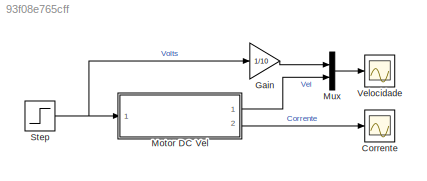
MODEL slx_93f08e765cff
KIND model
CONFIG AbsTol = auto
CONFIG EnableMultiTasking = off
CONFIG FixedStep = auto
CONFIG MaxStep = auto
CONFIG MinStep = auto
CONFIG RelTol = 1e-3
CONFIG SampleTimeConstraint = Unconstrained
CONFIG Solver = VariableStepAuto
CONFIG SolverName = VariableStepAuto
CONFIG StartTime = 0.0
CONFIG StopTime = 5
BLOCK [Scope] Corrente
  Floating = off
  NumInputPorts = 1
  Ports = [1]
  ScopeSpecificationString = Simulink.scopes.TimeScopeBlockCfg('CurrentConfiguration', extmgr.ConfigurationSet(extmgr.Configuration('Core','General UI',true,'FigureColor',[1 1 1]),extmgr.Configuration('Core','Source UI',true),extmgr.Configuration('Sources','WiredSimulink',true,'DataLoggingVariableName','ScopeData1'),extmgr.Configuration('Visuals','Time Domain',true,'SerializedDisplays',{struct('MinYLimReal','-1.24834','MaxYLi...<+1632ch>
BLOCK [Gain] Gain
  Gain = 1/10
  OutDataTypeStr = Inherit: Inherit via internal rule
  ParamDataTypeStr = Inherit: Inherit via internal rule
  SaturateOnIntegerOverflow = off
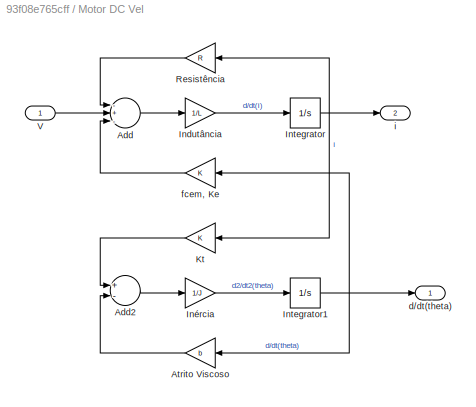
BLOCK [SubSystem] Motor DC Vel
  Ports = [1, 2]
  RequestExecContextInheritance = off
BLOCK [Sum] Motor DC Vel/Add 
  InputSameDT = off
  Inputs = -+-
  OutDataTypeStr = Inherit: Inherit via internal rule
  Ports = [3, 1]
  SaturateOnIntegerOverflow = off
BLOCK [Sum] Motor DC Vel/Add2 
  InputSameDT = off
  Inputs = +-
  OutDataTypeStr = Inherit: Inherit via internal rule
  Ports = [2, 1]
  SaturateOnIntegerOverflow = off
BLOCK [Gain] Motor DC Vel/Atrito Viscoso
  Gain = b
  OutDataTypeStr = Inherit: Inherit via internal rule
  ParamDataTypeStr = Inherit: Inherit via internal rule
  SaturateOnIntegerOverflow = off
BLOCK [Gain] Motor DC Vel/Indutância
  Gain = 1/L
  OutDataTypeStr = Inherit: Inherit via internal rule
  ParamDataTypeStr = Inherit: Inherit via internal rule
  SaturateOnIntegerOverflow = off
BLOCK [Integrator] Motor DC Vel/Integrator 
  Ports = [1, 1]
BLOCK [Integrator] Motor DC Vel/Integrator1 
  Ports = [1, 1]
BLOCK [Gain] Motor DC Vel/Inércia
  Gain = 1/J
  OutDataTypeStr = Inherit: Inherit via internal rule
  ParamDataTypeStr = Inherit: Inherit via internal rule
  SaturateOnIntegerOverflow = off
BLOCK [Gain] Motor DC Vel/Kt
  Gain = K
  OutDataTypeStr = Inherit: Inherit via internal rule
  ParamDataTypeStr = Inherit: Inherit via internal rule
  SaturateOnIntegerOverflow = off
BLOCK [Gain] Motor DC Vel/Resistência
  Gain = R
  OutDataTypeStr = Inherit: Inherit via internal rule
  ParamDataTypeStr = Inherit: Inherit via internal rule
  SaturateOnIntegerOverflow = off
BLOCK [Inport] Motor DC Vel/V
  IconDisplay = Port number
BLOCK [Outport] Motor DC Vel/d//dt(theta)
  IconDisplay = Port number
BLOCK [Gain] Motor DC Vel/fcem, Ke
  Gain = K
  OutDataTypeStr = Inherit: Inherit via internal rule
  ParamDataTypeStr = Inherit: Inherit via internal rule
  SaturateOnIntegerOverflow = off
BLOCK [Outport] Motor DC Vel/i
  IconDisplay = Port number
  Port = 2
BLOCK [Mux] Mux
  DisplayOption = bar
  Inputs = 2
  Ports = [2, 1]
BLOCK [Step] Step
  After = 10
  SampleTime = 0
BLOCK [Scope] Velocidade
  Floating = off
  NumInputPorts = 1
  Ports = [1]
  ScopeSpecificationString = Simulink.scopes.TimeScopeBlockCfg('CurrentConfiguration', extmgr.ConfigurationSet(extmgr.Configuration('Core','General UI',true,'FigureColor',[1 1 1]),extmgr.Configuration('Core','Source UI',true),extmgr.Configuration('Sources','WiredSimulink',true),extmgr.Configuration('Visuals','Time Domain',true,'SerializedDisplays',{struct('MinYLimReal','-0.125','MaxYLimReal','1.125','YLabelReal','','MinYLimMa...<+1614ch>
LINE Gain:1 -> Mux:1
LINE Motor DC Vel/Add :1 -> Motor DC Vel/Indutância:1
LINE Motor DC Vel/Add2 :1 -> Motor DC Vel/Inércia:1
LINE Motor DC Vel/Atrito Viscoso:1 -> Motor DC Vel/Add2 :2
LINE Motor DC Vel/Indutância:1 -> Motor DC Vel/Integrator :1
NET Motor DC Vel/Integrator :1 -> Motor DC Vel/Kt:1, Motor DC Vel/Resistência:1, Motor DC Vel/i:1
NET Motor DC Vel/Integrator1 :1 -> Motor DC Vel/Atrito Viscoso:1, Motor DC Vel/d//dt(theta):1, Motor DC Vel/fcem, Ke:1
LINE Motor DC Vel/Inércia:1 -> Motor DC Vel/Integrator1 :1
LINE Motor DC Vel/Kt:1 -> Motor DC Vel/Add2 :1
LINE Motor DC Vel/Resistência:1 -> Motor DC Vel/Add :1
LINE Motor DC Vel/V:1 -> Motor DC Vel/Add :2
LINE Motor DC Vel/fcem, Ke:1 -> Motor DC Vel/Add :3
LINE Motor DC Vel:1 -> Mux:2
LINE Motor DC Vel:2 -> Corrente:1
LINE Mux:1 -> Velocidade:1
NET Step:1 -> Gain:1, Motor DC Vel:1
note: NET lines group one-source signal fan-out (src -> all destinations, sorted); 1:1 wires keep LINE
